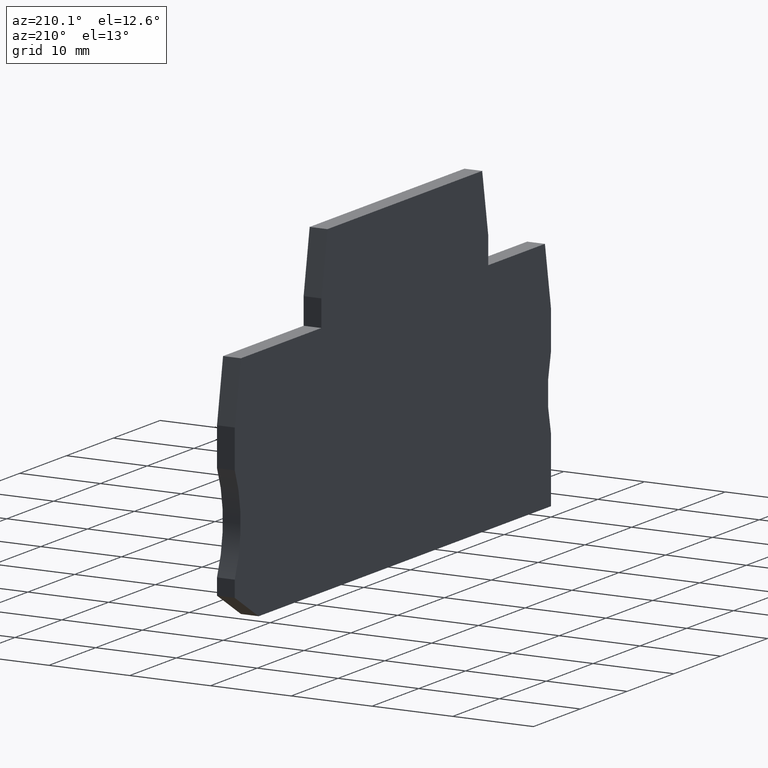
[diagram: clean part render]
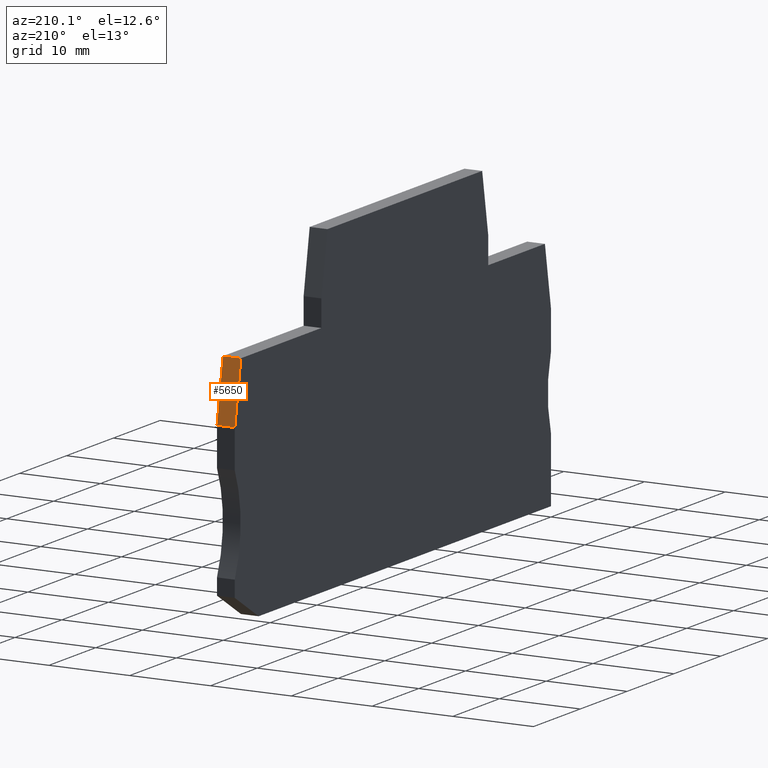
[diagram: same view with one face highlighted and labeled with its STEP entity id]
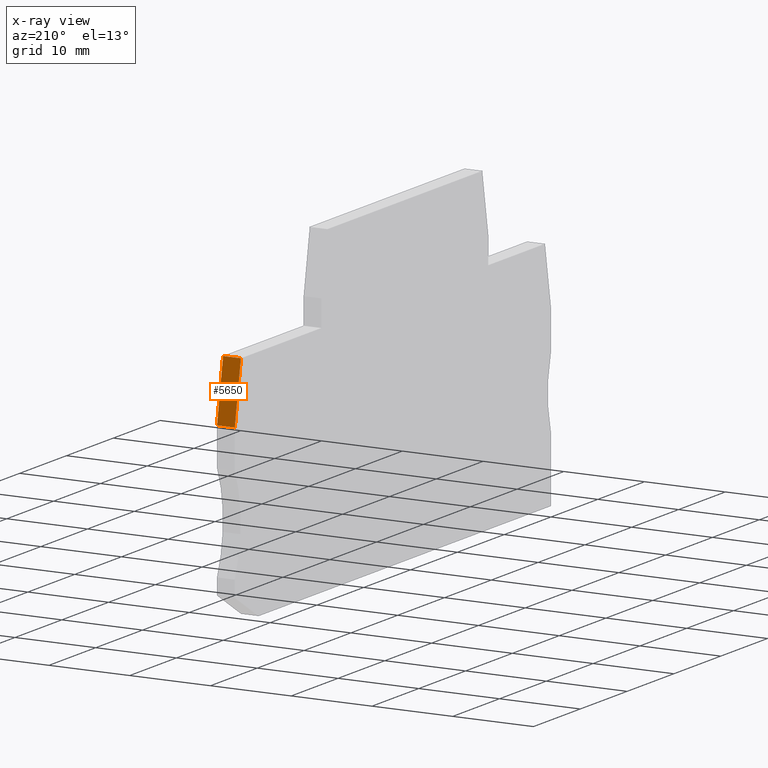
[diagram: x-ray of the same camera — body ghosted, the highlighted face saturated]
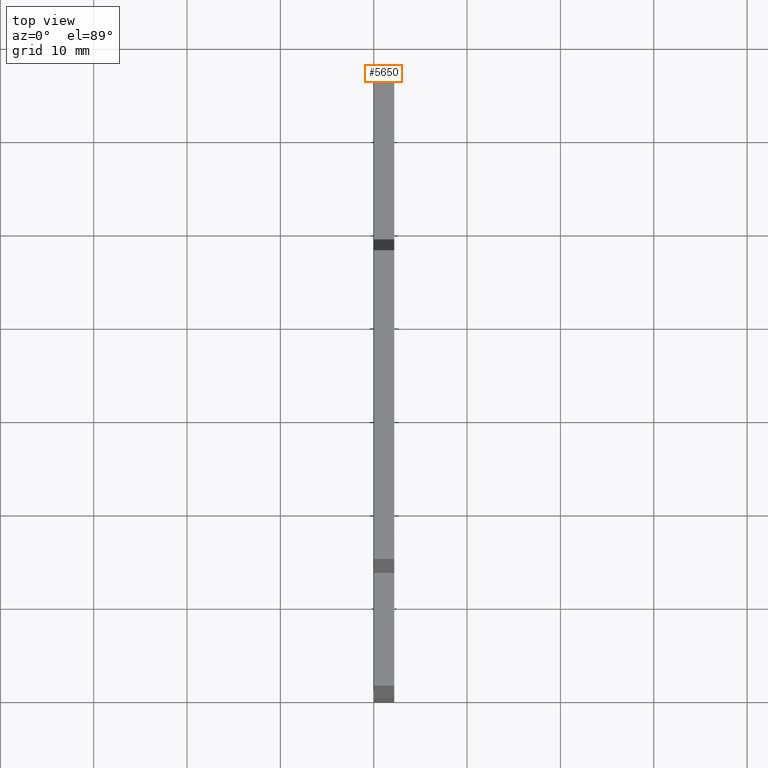
[diagram: same view with one face highlighted and labeled with its STEP entity id]
A machine part, auxiliary view. The second image highlights one B-rep face of the part: STEP entity #5650.
The next image is the same camera in x-ray: the body ghosted, the highlighted face saturated — about 0% of this face is hidden behind the body in this view.
A second angle (top view) of the same face is appended — the face is thin or edge-on in the first view.
In plain terms, the highlighted planar face has unit normal (-0, 0.9848, 0.1736).
Its self-contained STEP definition (entity closure, byte-faithful):
#1040=CARTESIAN_POINT('',(115.407395853897,-16.5000017509225,53.67));
#1050=VERTEX_POINT('',#1040);
#1220=CARTESIAN_POINT('',(115.407395853897,-16.5000017509225,55.87));
#1230=VERTEX_POINT('',#1220);
#1260=CARTESIAN_POINT('',(115.407395853897,-16.5000017509225,53.67));
#1270=DIRECTION('',(0.,0.,1.));
#1280=VECTOR('',#1270,1.);
#1290=LINE('',#1260,#1280);
#1300=EDGE_CURVE('',#1050,#1230,#1290,.T.);
#3920=CARTESIAN_POINT('',(114.111392236956,-9.15000000000308,55.87));
#3930=VERTEX_POINT('',#3920);
#3960=CARTESIAN_POINT('',(114.603869967534,-11.94298,55.87));
#3970=DIRECTION('',(-0.17364817766693,0.984807753012208,0.));
#3980=VECTOR('',#3970,1.);
#3990=LINE('',#3960,#3980);
#4000=EDGE_CURVE('',#1230,#3930,#3990,.T.);
#4730=CARTESIAN_POINT('',(114.111392236956,-9.15000000000308,53.67));
#4740=VERTEX_POINT('',#4730);
#4770=CARTESIAN_POINT('',(114.111392236956,-9.15000000000308,53.67));
#4780=DIRECTION('',(0.,0.,1.));
#4790=VECTOR('',#4780,1.);
#4800=LINE('',#4770,#4790);
#4810=EDGE_CURVE('',#4740,#3930,#4800,.T.);
#5490=CARTESIAN_POINT('',(114.111392236956,-9.15000000000308,53.67));
#5500=DIRECTION('',(0.984807753012208,0.17364817766693,0.));
#5510=DIRECTION('',(0.17364817766693,-0.984807753012208,0.));
#5520=AXIS2_PLACEMENT_3D('',#5490,#5500,#5510);
#5530=PLANE('',#5520);
#5540=CARTESIAN_POINT('',(114.603869967534,-11.94298,53.67));
#5550=DIRECTION('',(0.17364817766693,-0.984807753012208,0.));
#5560=VECTOR('',#5550,1.);
#5570=LINE('',#5540,#5560);
#5580=EDGE_CURVE('',#4740,#1050,#5570,.T.);
#5590=ORIENTED_EDGE('',*,*,#5580,.F.);
#5600=ORIENTED_EDGE('',*,*,#1300,.F.);
#5610=ORIENTED_EDGE('',*,*,#4000,.F.);
#5620=ORIENTED_EDGE('',*,*,#4810,.T.);
#5630=EDGE_LOOP('',(#5620,#5610,#5600,#5590));
#5640=FACE_OUTER_BOUND('',#5630,.T.);
#5650=ADVANCED_FACE('',(#5640),#5530,.T.);